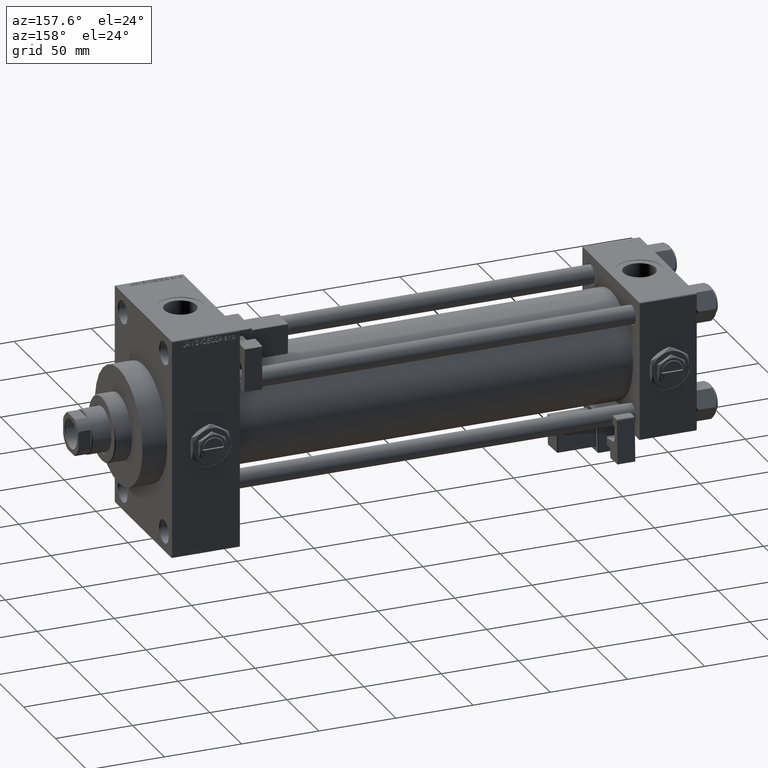
[diagram: clean part render]
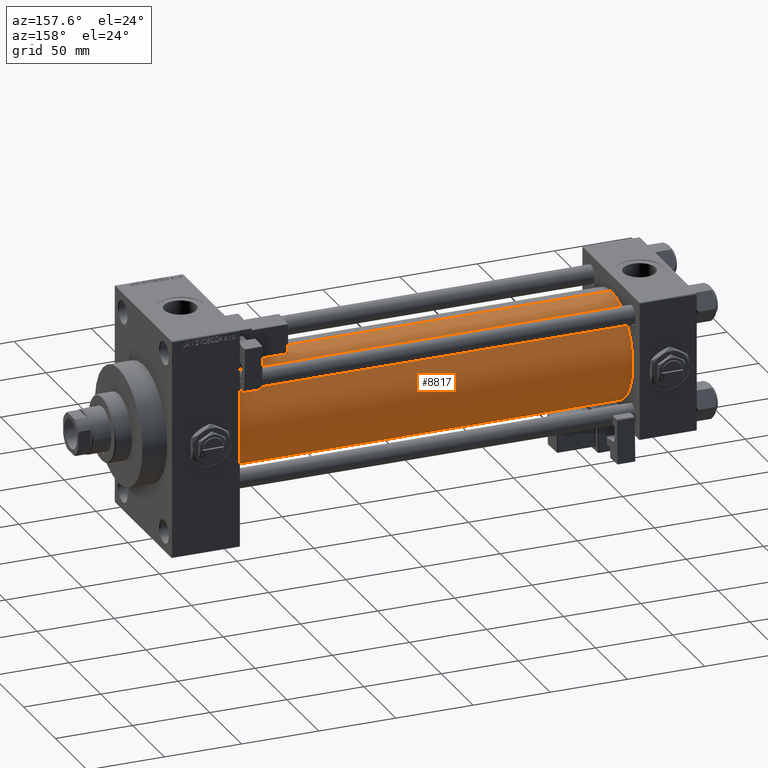
[diagram: same view with one face highlighted and labeled with its STEP entity id]
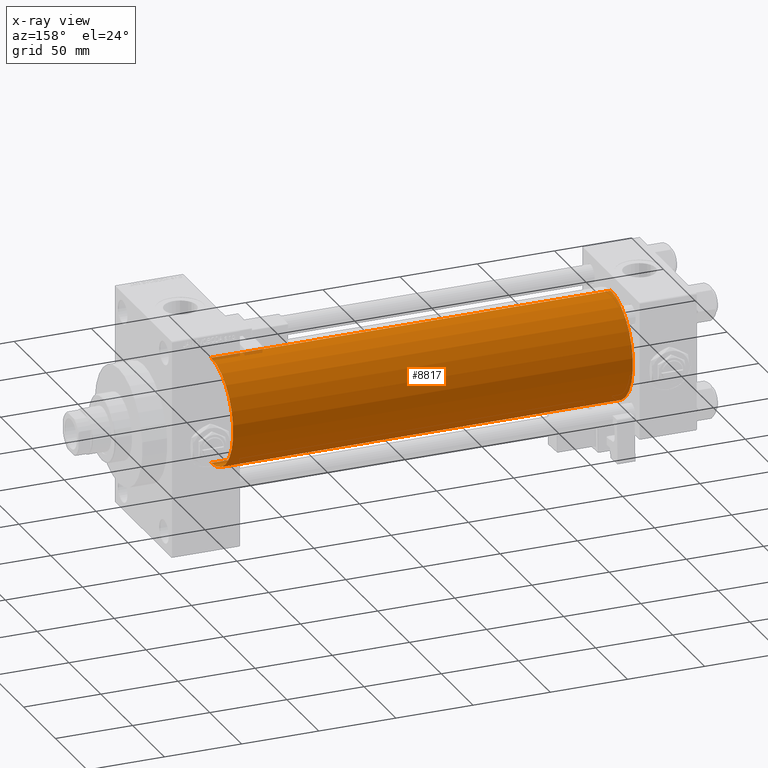
[diagram: x-ray of the same camera — body ghosted, the highlighted face saturated]
A machine part, auxiliary view. The second image highlights one B-rep face of the part: STEP entity #8817.
The next image is the same camera in x-ray: the body ghosted, the highlighted face saturated — about 0% of this face is hidden behind the body in this view.
In plain terms, the highlighted cylindrical surface (partial cylindrical patch) has radius 34.5 mm, axis along (-1, -0, -0).
Its self-contained STEP definition (entity closure, byte-faithful):
#1478 = CARTESIAN_POINT ( 'NONE',  ( 36.99999999999997868, -2.602085213965210642E-15, 34.50000000000000000 ) ) ;
#4791 = EDGE_CURVE ( 'NONE', #16274, #39524, #46549, .T. ) ;
#5029 = DIRECTION ( 'NONE',  ( 1.000000000000000000, -0.000000000000000000, 0.000000000000000000 ) ) ;
#6643 = DIRECTION ( 'NONE',  ( 0.000000000000000000, 0.000000000000000000, 1.000000000000000000 ) ) ;
#8611 = VERTEX_POINT ( 'NONE', #27464 ) ;
#8817 = ADVANCED_FACE ( 'NONE', ( #18629 ), #45709, .T. ) ;
#9181 = CARTESIAN_POINT ( 'NONE',  ( 296.0000000000000000, -2.602085213965210642E-15, 0.000000000000000000 ) ) ;
#10872 = EDGE_LOOP ( 'NONE', ( #14478, #17317, #22462, #23995 ) ) ;
#11624 = DIRECTION ( 'NONE',  ( -1.000000000000000000, -0.000000000000000000, -0.000000000000000000 ) ) ;
#12332 = EDGE_CURVE ( 'NONE', #30108, #16274, #33738, .T. ) ;
#14478 = ORIENTED_EDGE ( 'NONE', *, *, #12332, .F. ) ;
#16274 = VERTEX_POINT ( 'NONE', #18204 ) ;
#17317 = ORIENTED_EDGE ( 'NONE', *, *, #26301, .T. ) ;
#18204 = CARTESIAN_POINT ( 'NONE',  ( 296.0000000000000000, -2.602085213965210642E-15, 34.50000000000000000 ) ) ;
#18629 = FACE_OUTER_BOUND ( 'NONE', #10872, .T. ) ;
#22462 = ORIENTED_EDGE ( 'NONE', *, *, #45960, .T. ) ;
#23019 = VECTOR ( 'NONE', #33534, 1000.000000000000000 ) ;
#23995 = ORIENTED_EDGE ( 'NONE', *, *, #4791, .F. ) ;
#24133 = AXIS2_PLACEMENT_3D ( 'NONE', #29216, #5029, #45107 ) ;
#25218 = CARTESIAN_POINT ( 'NONE',  ( 296.0000000000000000, 1.622946243093158675E-15, -34.50000000000000000 ) ) ;
#26301 = EDGE_CURVE ( 'NONE', #30108, #8611, #32781, .T. ) ;
#27464 = CARTESIAN_POINT ( 'NONE',  ( 36.99999999999997868, 1.622946243093158675E-15, -34.50000000000000000 ) ) ;
#28581 = VECTOR ( 'NONE', #11624, 1000.000000000000000 ) ;
#29216 = CARTESIAN_POINT ( 'NONE',  ( 36.99999999999997868, -2.602085213965210642E-15, 0.000000000000000000 ) ) ;
#29530 = AXIS2_PLACEMENT_3D ( 'NONE', #50416, #46232, #6643 ) ;
#29563 = AXIS2_PLACEMENT_3D ( 'NONE', #9181, #40957, #48524 ) ;
#30108 = VERTEX_POINT ( 'NONE', #25218 ) ;
#32781 = LINE ( 'NONE', #34300, #23019 ) ;
#33400 = CIRCLE ( 'NONE', #24133, 34.50000000000000000 ) ;
#33534 = DIRECTION ( 'NONE',  ( -1.000000000000000000, -0.000000000000000000, -0.000000000000000000 ) ) ;
#33738 = CIRCLE ( 'NONE', #29563, 34.50000000000000000 ) ;
#34300 = CARTESIAN_POINT ( 'NONE',  ( 296.0000000000000000, 1.622946243093158675E-15, -34.50000000000000000 ) ) ;
#35079 = CARTESIAN_POINT ( 'NONE',  ( 296.0000000000000000, -2.602085213965210642E-15, 34.50000000000000000 ) ) ;
#39524 = VERTEX_POINT ( 'NONE', #1478 ) ;
#40957 = DIRECTION ( 'NONE',  ( 1.000000000000000000, 0.000000000000000000, 0.000000000000000000 ) ) ;
#45107 = DIRECTION ( 'NONE',  ( 0.000000000000000000, 0.000000000000000000, 1.000000000000000000 ) ) ;
#45709 = CYLINDRICAL_SURFACE ( 'NONE', #29530, 34.50000000000000000 ) ;
#45960 = EDGE_CURVE ( 'NONE', #8611, #39524, #33400, .T. ) ;
#46232 = DIRECTION ( 'NONE',  ( -1.000000000000000000, -0.000000000000000000, -0.000000000000000000 ) ) ;
#46549 = LINE ( 'NONE', #35079, #28581 ) ;
#48524 = DIRECTION ( 'NONE',  ( 0.000000000000000000, 0.000000000000000000, -1.000000000000000000 ) ) ;
#50416 = CARTESIAN_POINT ( 'NONE',  ( 296.0000000000000000, -2.602085213965210642E-15, 0.000000000000000000 ) ) ;